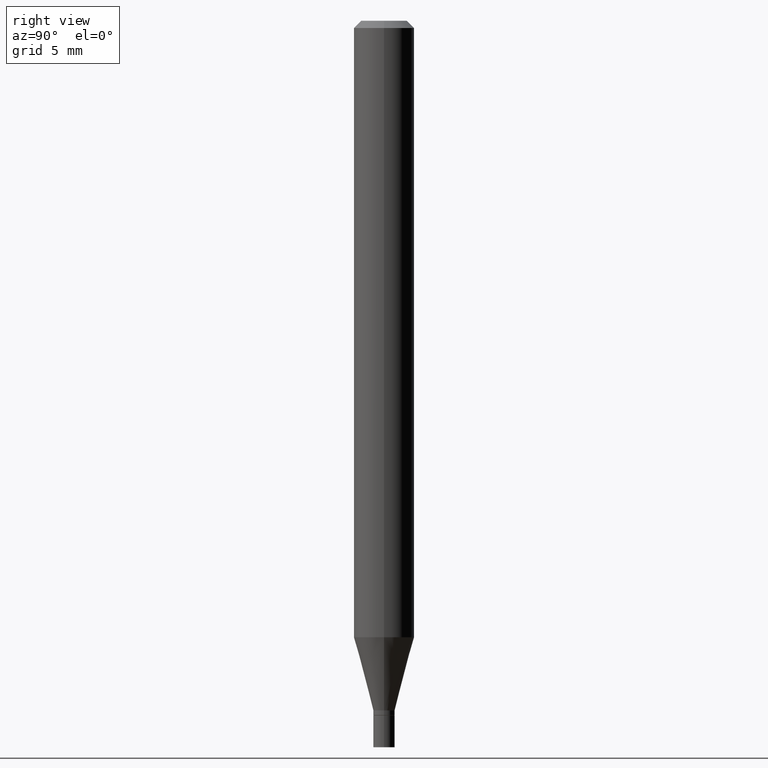
[diagram: clean part render]
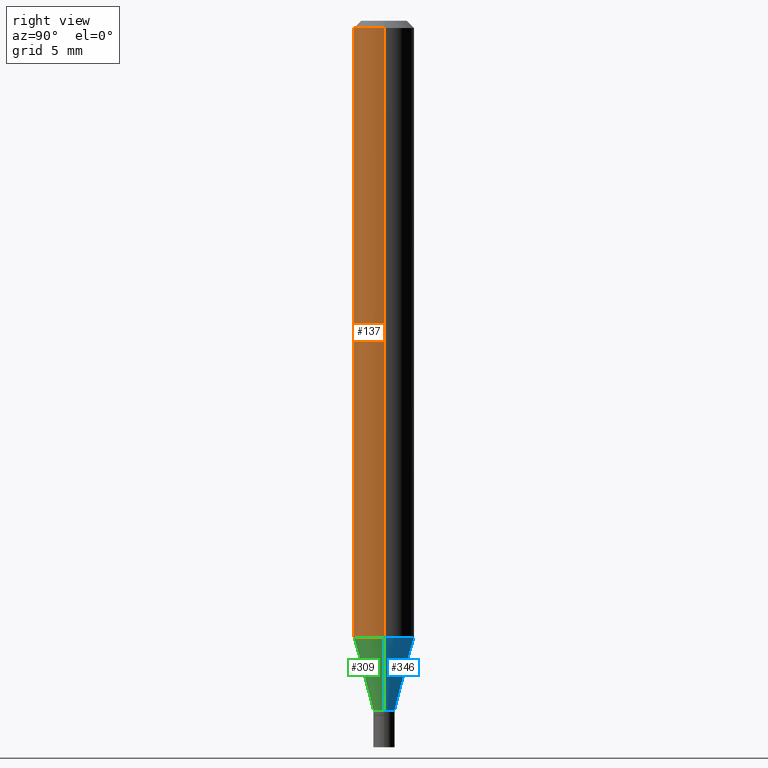
[diagram: same view with three faces highlighted in distinct colors, each labeled with its STEP entity id]
A machine part, right view with three faces highlighted in distinct colors.
Their STEP definitions:

[orange] entity #137 — the highlighted cylindrical surface (edge-blend (fillet) strip) has radius 1.5875 mm, axis along (-0, 0, 1).
#14 = DIRECTION ( 'NONE',  ( -2.445468806185136597E-29, 3.491481338843145583E-15, 1.000000000000000000 ) ) ;
#22 = FACE_OUTER_BOUND ( 'NONE', #194, .T. ) ;
#24 = CARTESIAN_POINT ( 'NONE',  ( 0.06250000000000000000, -4.888073874380388472E-16, -0.01499999999999999944 ) ) ;
#36 = ORIENTED_EDGE ( 'NONE', *, *, #110, .T. ) ;
#38 = CIRCLE ( 'NONE', #122, 0.06250000000000000000 ) ;
#44 = ORIENTED_EDGE ( 'NONE', *, *, #435, .T. ) ;
#55 = DIRECTION ( 'NONE',  ( -2.445468806185136877E-29, 3.491481338843145188E-15, 1.000000000000000000 ) ) ;
#92 = DIRECTION ( 'NONE',  ( -2.445468806185136597E-29, 3.491481338843145583E-15, 1.000000000000000000 ) ) ;
#97 = EDGE_CURVE ( 'NONE', #278, #466, #387, .T. ) ;
#110 = EDGE_CURVE ( 'NONE', #278, #318, #140, .T. ) ;
#122 = AXIS2_PLACEMENT_3D ( 'NONE', #305, #448, #299 ) ;
#134 = CYLINDRICAL_SURFACE ( 'NONE', #152, 0.06250000000000000000 ) ;
#136 = CARTESIAN_POINT ( 'NONE',  ( -0.06250000000000000000, -1.804166302005195836E-15, -0.01499999999999999944 ) ) ;
#137 = ADVANCED_FACE ( 'NONE', ( #22 ), #134, .T. ) ;
#140 = CIRCLE ( 'NONE', #201, 0.06250000000000000000 ) ;
#152 = AXIS2_PLACEMENT_3D ( 'NONE', #250, #14, #281 ) ;
#194 = EDGE_LOOP ( 'NONE', ( #260, #36, #44, #344 ) ) ;
#196 = CARTESIAN_POINT ( 'NONE',  ( -0.06250000000000001388, -4.000049593777807603E-15, -1.272851942293460548 ) ) ;
#201 = AXIS2_PLACEMENT_3D ( 'NONE', #347, #92, #242 ) ;
#204 = CARTESIAN_POINT ( 'NONE',  ( 0.06250000000000000000, -4.364351673553916694E-16, 3.047610484872459871E-30 ) ) ;
#211 = EDGE_CURVE ( 'NONE', #466, #371, #38, .T. ) ;
#242 = DIRECTION ( 'NONE',  ( 1.000000000000000000, -6.982962677686262766E-15, 0.000000000000000000 ) ) ;
#250 = CARTESIAN_POINT ( 'NONE',  ( 0.000000000000000000, 0.000000000000000000, 0.000000000000000000 ) ) ;
#260 = ORIENTED_EDGE ( 'NONE', *, *, #97, .F. ) ;
#278 = VERTEX_POINT ( 'NONE', #196 ) ;
#281 = DIRECTION ( 'NONE',  ( 1.000000000000000000, -6.982962677686266711E-15, 4.876176775795935793E-29 ) ) ;
#299 = DIRECTION ( 'NONE',  ( 1.000000000000000000, -6.982962677686266711E-15, 0.000000000000000000 ) ) ;
#305 = CARTESIAN_POINT ( 'NONE',  ( 3.668203209277705088E-31, -5.237222008264718399E-17, -0.01499999999999999944 ) ) ;
#318 = VERTEX_POINT ( 'NONE', #407 ) ;
#344 = ORIENTED_EDGE ( 'NONE', *, *, #211, .F. ) ;
#347 = CARTESIAN_POINT ( 'NONE',  ( 3.112719719770821642E-29, -4.444138803627870220E-15, -1.272851942293460548 ) ) ;
#348 = DIRECTION ( 'NONE',  ( -2.445468806185136877E-29, 3.491481338843145188E-15, 1.000000000000000000 ) ) ;
#367 = VECTOR ( 'NONE', #348, 39.37007874015748143 ) ;
#371 = VERTEX_POINT ( 'NONE', #24 ) ;
#387 = LINE ( 'NONE', #390, #367 ) ;
#390 = CARTESIAN_POINT ( 'NONE',  ( -0.06250000000000000000, 4.440892098500626162E-16, -3.074334431409316114E-30 ) ) ;
#407 = CARTESIAN_POINT ( 'NONE',  ( 0.06250000000000001388, -4.880573970983261100E-15, -1.272851942293460548 ) ) ;
#410 = VECTOR ( 'NONE', #55, 39.37007874015748143 ) ;
#435 = EDGE_CURVE ( 'NONE', #318, #371, #461, .T. ) ;
#448 = DIRECTION ( 'NONE',  ( -2.445468806185136597E-29, 3.491481338843145583E-15, 1.000000000000000000 ) ) ;
#461 = LINE ( 'NONE', #204, #410 ) ;
#466 = VERTEX_POINT ( 'NONE', #136 ) ;

[blue] entity #346 — the highlighted conical surface has half-angle 15 deg.
#7 = CARTESIAN_POINT ( 'NONE',  ( 3.482347580007634944E-29, -4.971869426512640168E-15, -1.424000000000000155 ) ) ;
#15 = CARTESIAN_POINT ( 'NONE',  ( -0.02199999999999992240, -4.815550024645417988E-15, -1.424000000000000155 ) ) ;
#41 = DIRECTION ( 'NONE',  ( -2.445468806185136597E-29, 3.491481338843145583E-15, 1.000000000000000000 ) ) ;
#49 = VECTOR ( 'NONE', #226, 39.37007874015748854 ) ;
#54 = EDGE_CURVE ( 'NONE', #318, #278, #335, .T. ) ;
#75 = VERTEX_POINT ( 'NONE', #456 ) ;
#80 = AXIS2_PLACEMENT_3D ( 'NONE', #228, #41, #189 ) ;
#98 = VECTOR ( 'NONE', #370, 39.37007874015748854 ) ;
#109 = CARTESIAN_POINT ( 'NONE',  ( -0.02199999999999992240, -4.407799809211612796E-15, -1.424000000000000155 ) ) ;
#147 = CARTESIAN_POINT ( 'NONE',  ( 0.02199999999999992240, -5.125494605421737215E-15, -1.424000000000000155 ) ) ;
#151 = DIRECTION ( 'NONE',  ( -2.445468806185136597E-29, 3.491481338843145583E-15, 1.000000000000000000 ) ) ;
#178 = DIRECTION ( 'NONE',  ( -2.445468806185136597E-29, 3.491481338843145583E-15, 1.000000000000000000 ) ) ;
#181 = ORIENTED_EDGE ( 'NONE', *, *, #279, .T. ) ;
#185 = EDGE_CURVE ( 'NONE', #75, #245, #327, .T. ) ;
#189 = DIRECTION ( 'NONE',  ( 1.000000000000000000, -6.982962677686269866E-15, 0.000000000000000000 ) ) ;
#192 = LINE ( 'NONE', #15, #49 ) ;
#195 = DIRECTION ( 'NONE',  ( 1.000000000000000000, -6.982962677686262766E-15, 0.000000000000000000 ) ) ;
#196 = CARTESIAN_POINT ( 'NONE',  ( -0.06250000000000001388, -4.000049593777807603E-15, -1.272851942293460548 ) ) ;
#226 = DIRECTION ( 'NONE',  ( -0.2588190451025211281, 5.211531920934547886E-15, 0.9659258262890679791 ) ) ;
#228 = CARTESIAN_POINT ( 'NONE',  ( 3.482347580007634944E-29, -4.971869426512640168E-15, -1.424000000000000155 ) ) ;
#232 = LINE ( 'NONE', #147, #98 ) ;
#233 = DIRECTION ( 'NONE',  ( 1.000000000000000000, -6.982962677686269866E-15, 0.000000000000000000 ) ) ;
#237 = EDGE_CURVE ( 'NONE', #75, #318, #232, .T. ) ;
#238 = ORIENTED_EDGE ( 'NONE', *, *, #237, .F. ) ;
#245 = VERTEX_POINT ( 'NONE', #109 ) ;
#254 = ORIENTED_EDGE ( 'NONE', *, *, #54, .F. ) ;
#270 = FACE_OUTER_BOUND ( 'NONE', #451, .T. ) ;
#278 = VERTEX_POINT ( 'NONE', #196 ) ;
#279 = EDGE_CURVE ( 'NONE', #245, #278, #192, .T. ) ;
#285 = CONICAL_SURFACE ( 'NONE', #80, 0.02199999999999992240, 0.2617993877991498519 ) ;
#318 = VERTEX_POINT ( 'NONE', #407 ) ;
#327 = CIRCLE ( 'NONE', #449, 0.02199999999999992240 ) ;
#335 = CIRCLE ( 'NONE', #418, 0.06250000000000000000 ) ;
#346 = ADVANCED_FACE ( 'NONE', ( #270 ), #285, .T. ) ;
#370 = DIRECTION ( 'NONE',  ( 0.2588190451025211281, 1.565188264969622954E-15, 0.9659258262890679791 ) ) ;
#407 = CARTESIAN_POINT ( 'NONE',  ( 0.06250000000000001388, -4.880573970983261100E-15, -1.272851942293460548 ) ) ;
#418 = AXIS2_PLACEMENT_3D ( 'NONE', #438, #178, #195 ) ;
#432 = ORIENTED_EDGE ( 'NONE', *, *, #185, .T. ) ;
#438 = CARTESIAN_POINT ( 'NONE',  ( 3.112719719770821642E-29, -4.444138803627870220E-15, -1.272851942293460548 ) ) ;
#449 = AXIS2_PLACEMENT_3D ( 'NONE', #7, #151, #233 ) ;
#451 = EDGE_LOOP ( 'NONE', ( #432, #181, #254, #238 ) ) ;
#456 = CARTESIAN_POINT ( 'NONE',  ( 0.02199999999999992240, -5.125494605421737215E-15, -1.424000000000000155 ) ) ;

[green] entity #309 — the highlighted conical surface has half-angle 15 deg.
#8 = CARTESIAN_POINT ( 'NONE',  ( 3.482347580007634944E-29, -4.971869426512640168E-15, -1.424000000000000155 ) ) ;
#15 = CARTESIAN_POINT ( 'NONE',  ( -0.02199999999999992240, -4.815550024645417988E-15, -1.424000000000000155 ) ) ;
#17 = DIRECTION ( 'NONE',  ( -2.445468806185136597E-29, 3.491481338843145583E-15, 1.000000000000000000 ) ) ;
#26 = ORIENTED_EDGE ( 'NONE', *, *, #110, .F. ) ;
#49 = VECTOR ( 'NONE', #226, 39.37007874015748854 ) ;
#75 = VERTEX_POINT ( 'NONE', #456 ) ;
#89 = CIRCLE ( 'NONE', #219, 0.02199999999999992240 ) ;
#92 = DIRECTION ( 'NONE',  ( -2.445468806185136597E-29, 3.491481338843145583E-15, 1.000000000000000000 ) ) ;
#98 = VECTOR ( 'NONE', #370, 39.37007874015748854 ) ;
#106 = EDGE_LOOP ( 'NONE', ( #248, #166, #362, #26 ) ) ;
#109 = CARTESIAN_POINT ( 'NONE',  ( -0.02199999999999992240, -4.407799809211612796E-15, -1.424000000000000155 ) ) ;
#110 = EDGE_CURVE ( 'NONE', #278, #318, #140, .T. ) ;
#119 = DIRECTION ( 'NONE',  ( 1.000000000000000000, -6.982962677686269866E-15, 0.000000000000000000 ) ) ;
#140 = CIRCLE ( 'NONE', #201, 0.06250000000000000000 ) ;
#147 = CARTESIAN_POINT ( 'NONE',  ( 0.02199999999999992240, -5.125494605421737215E-15, -1.424000000000000155 ) ) ;
#149 = DIRECTION ( 'NONE',  ( -2.445468806185136597E-29, 3.491481338843145583E-15, 1.000000000000000000 ) ) ;
#166 = ORIENTED_EDGE ( 'NONE', *, *, #391, .T. ) ;
#169 = CONICAL_SURFACE ( 'NONE', #261, 0.02199999999999992240, 0.2617993877991498519 ) ;
#192 = LINE ( 'NONE', #15, #49 ) ;
#196 = CARTESIAN_POINT ( 'NONE',  ( -0.06250000000000001388, -4.000049593777807603E-15, -1.272851942293460548 ) ) ;
#201 = AXIS2_PLACEMENT_3D ( 'NONE', #347, #92, #242 ) ;
#219 = AXIS2_PLACEMENT_3D ( 'NONE', #416, #17, #249 ) ;
#226 = DIRECTION ( 'NONE',  ( -0.2588190451025211281, 5.211531920934547886E-15, 0.9659258262890679791 ) ) ;
#232 = LINE ( 'NONE', #147, #98 ) ;
#237 = EDGE_CURVE ( 'NONE', #75, #318, #232, .T. ) ;
#242 = DIRECTION ( 'NONE',  ( 1.000000000000000000, -6.982962677686262766E-15, 0.000000000000000000 ) ) ;
#245 = VERTEX_POINT ( 'NONE', #109 ) ;
#248 = ORIENTED_EDGE ( 'NONE', *, *, #279, .F. ) ;
#249 = DIRECTION ( 'NONE',  ( 1.000000000000000000, -6.982962677686269866E-15, 0.000000000000000000 ) ) ;
#261 = AXIS2_PLACEMENT_3D ( 'NONE', #8, #149, #119 ) ;
#278 = VERTEX_POINT ( 'NONE', #196 ) ;
#279 = EDGE_CURVE ( 'NONE', #245, #278, #192, .T. ) ;
#280 = FACE_OUTER_BOUND ( 'NONE', #106, .T. ) ;
#309 = ADVANCED_FACE ( 'NONE', ( #280 ), #169, .T. ) ;
#318 = VERTEX_POINT ( 'NONE', #407 ) ;
#347 = CARTESIAN_POINT ( 'NONE',  ( 3.112719719770821642E-29, -4.444138803627870220E-15, -1.272851942293460548 ) ) ;
#362 = ORIENTED_EDGE ( 'NONE', *, *, #237, .T. ) ;
#370 = DIRECTION ( 'NONE',  ( 0.2588190451025211281, 1.565188264969622954E-15, 0.9659258262890679791 ) ) ;
#391 = EDGE_CURVE ( 'NONE', #245, #75, #89, .T. ) ;
#407 = CARTESIAN_POINT ( 'NONE',  ( 0.06250000000000001388, -4.880573970983261100E-15, -1.272851942293460548 ) ) ;
#416 = CARTESIAN_POINT ( 'NONE',  ( 3.482347580007634944E-29, -4.971869426512640168E-15, -1.424000000000000155 ) ) ;
#456 = CARTESIAN_POINT ( 'NONE',  ( 0.02199999999999992240, -5.125494605421737215E-15, -1.424000000000000155 ) ) ;